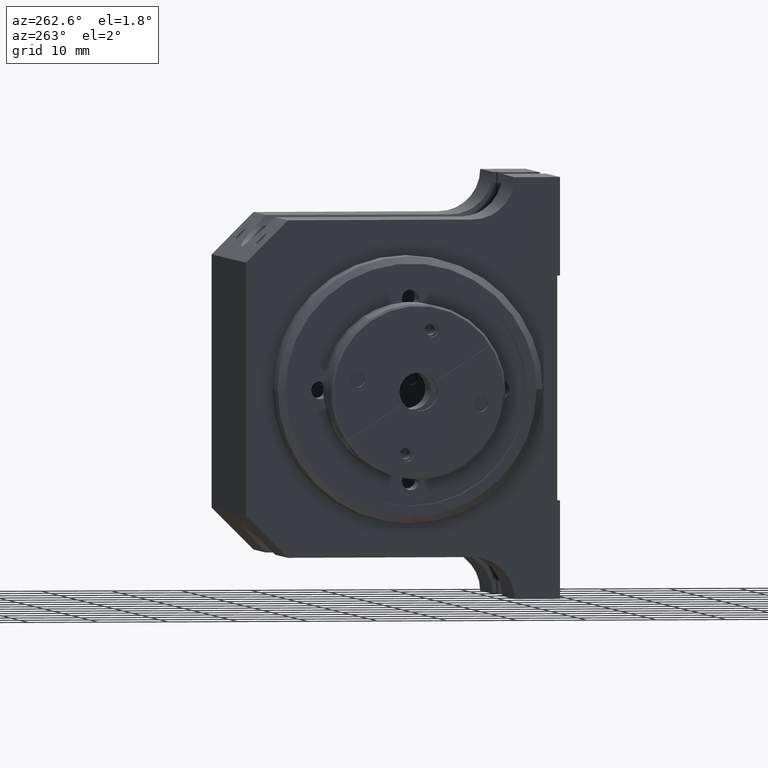
[diagram: clean part render]
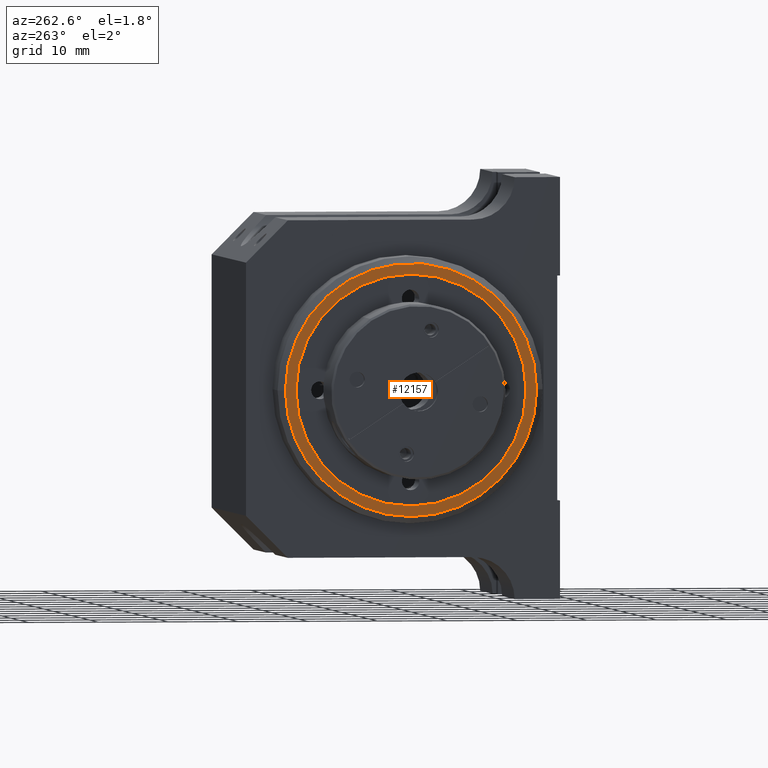
[diagram: same view with one face highlighted and labeled with its STEP entity id]
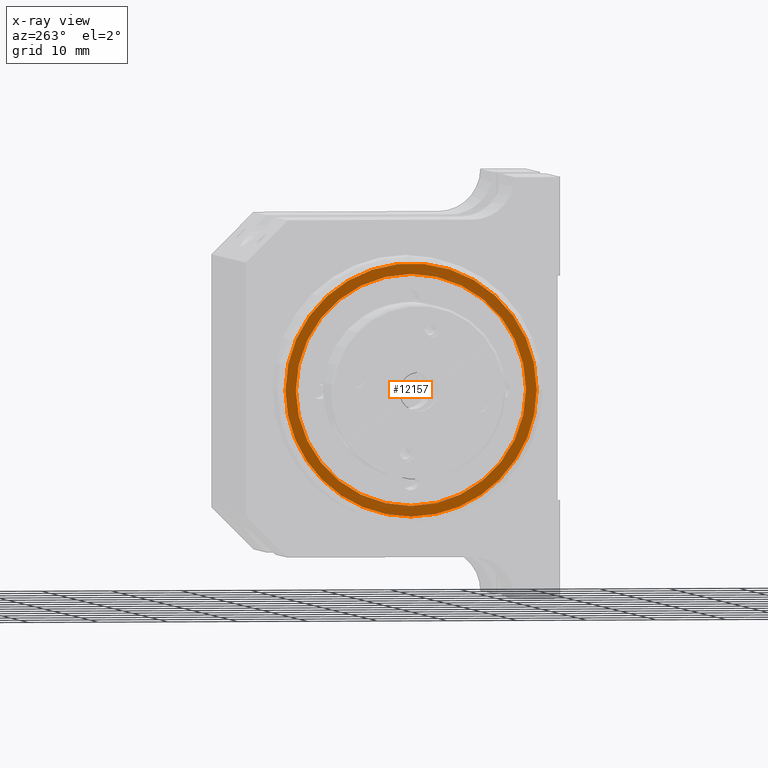
[diagram: x-ray of the same camera — body ghosted, the highlighted face saturated]
A machine part, auxiliary view. The second image highlights one B-rep face of the part: STEP entity #12157.
The next image is the same camera in x-ray: the body ghosted, the highlighted face saturated — about 0% of this face is hidden behind the body in this view.
In plain terms, the highlighted planar face has unit normal (1, 0, 0).
Its self-contained STEP definition (entity closure, byte-faithful):
#15 = VERTEX_POINT ( 'NONE', #4970 ) ;
#177 = VERTEX_POINT ( 'NONE', #10862 ) ;
#291 = EDGE_CURVE ( 'NONE', #1552, #4243, #8238, .T. ) ;
#305 = CIRCLE ( 'NONE', #10580, 16.49999999999999645 ) ;
#379 = CARTESIAN_POINT ( 'NONE',  ( 2.206792701287000133E-05, 20.01035723764999830, 3.527752375123000217 ) ) ;
#543 = DIRECTION ( 'NONE',  ( 0.000000000000000000, 0.9999999288821173060, -0.0003771415654790013518 ) ) ;
#585 = AXIS2_PLACEMENT_3D ( 'NONE', #379, #11248, #9363 ) ;
#788 = EDGE_CURVE ( 'NONE', #177, #15, #4441, .T. ) ;
#1321 = CARTESIAN_POINT ( 'NONE',  ( 2.206792701287000133E-05, 20.01035723764999830, 3.527752375123000217 ) ) ;
#1472 = CARTESIAN_POINT ( 'NONE',  ( 2.206792701287000133E-05, 20.01035723764999830, 3.527752375123000217 ) ) ;
#1552 = VERTEX_POINT ( 'NONE', #11997 ) ;
#2183 = ORIENTED_EDGE ( 'NONE', *, *, #9606, .T. ) ;
#2753 = VERTEX_POINT ( 'NONE', #5628 ) ;
#3227 = FACE_BOUND ( 'NONE', #8570, .T. ) ;
#4103 = ORIENTED_EDGE ( 'NONE', *, *, #291, .F. ) ;
#4243 = VERTEX_POINT ( 'NONE', #12289 ) ;
#4348 = DIRECTION ( 'NONE',  ( 0.000000000000000000, -0.9999999288821173060, 0.0003771415654782009938 ) ) ;
#4441 = CIRCLE ( 'NONE', #8103, 18.00000616289999300 ) ;
#4557 = DIRECTION ( 'NONE',  ( -1.000000000000000000, 0.000000000000000000, 0.000000000000000000 ) ) ;
#4624 = EDGE_CURVE ( 'NONE', #4243, #1552, #305, .T. ) ;
#4638 = CARTESIAN_POINT ( 'NONE',  ( 2.206792700221000021E-05, 20.01035723764999830, 3.527752375123000217 ) ) ;
#4661 = ORIENTED_EDGE ( 'NONE', *, *, #8731, .T. ) ;
#4858 = CIRCLE ( 'NONE', #10237, 18.00000616289999300 ) ;
#4970 = CARTESIAN_POINT ( 'NONE',  ( 2.206792699622000343E-05, 2.010352354875000191, 3.534540925626000085 ) ) ;
#5090 = AXIS2_PLACEMENT_3D ( 'NONE', #9903, #7662, #11900 ) ;
#5354 = DIRECTION ( 'NONE',  ( -1.000000000000000000, 0.000000000000000000, 0.000000000000000000 ) ) ;
#5356 = CARTESIAN_POINT ( 'NONE',  ( 2.206792700221000021E-05, 20.01035723764999830, 3.527752375123000217 ) ) ;
#5421 = DIRECTION ( 'NONE',  ( -1.000000000000000000, 0.000000000000000000, 0.000000000000000000 ) ) ;
#5628 = CARTESIAN_POINT ( 'NONE',  ( 2.206792700820999875E-05, 38.01036212042999551, 3.520963824619999905 ) ) ;
#6342 = ORIENTED_EDGE ( 'NONE', *, *, #4624, .F. ) ;
#7510 = DIRECTION ( 'NONE',  ( 0.000000000000000000, 0.9999999288821173060, -0.0003771415654782009938 ) ) ;
#7662 = DIRECTION ( 'NONE',  ( 1.000000000000000000, 0.000000000000000000, 0.000000000000000000 ) ) ;
#7812 = CIRCLE ( 'NONE', #585, 18.00000616289999300 ) ;
#8103 = AXIS2_PLACEMENT_3D ( 'NONE', #4638, #4557, #543 ) ;
#8238 = CIRCLE ( 'NONE', #11133, 16.49999999999999645 ) ;
#8570 = EDGE_LOOP ( 'NONE', ( #4103, #6342 ) ) ;
#8652 = PLANE ( 'NONE',  #5090 ) ;
#8731 = EDGE_CURVE ( 'NONE', #15, #2753, #7812, .T. ) ;
#9363 = DIRECTION ( 'NONE',  ( 0.000000000000000000, -0.9999999288821173060, 0.0003771415654794109092 ) ) ;
#9606 = EDGE_CURVE ( 'NONE', #2753, #177, #4858, .T. ) ;
#9903 = CARTESIAN_POINT ( 'NONE',  ( 2.206792701287000133E-05, 20.01035723764999830, 3.527752375123000217 ) ) ;
#10153 = DIRECTION ( 'NONE',  ( -1.000000000000000000, 0.000000000000000000, 0.000000000000000000 ) ) ;
#10237 = AXIS2_PLACEMENT_3D ( 'NONE', #5356, #10153, #10322 ) ;
#10322 = DIRECTION ( 'NONE',  ( 0.000000000000000000, 0.9999999288821173060, -0.0003771415654790013518 ) ) ;
#10580 = AXIS2_PLACEMENT_3D ( 'NONE', #1321, #5354, #7510 ) ;
#10726 = ORIENTED_EDGE ( 'NONE', *, *, #788, .T. ) ;
#10862 = CARTESIAN_POINT ( 'NONE',  ( 2.206792700221000021E-05, 20.00356868714710146, -14.47225250765990445 ) ) ;
#11133 = AXIS2_PLACEMENT_3D ( 'NONE', #1472, #5421, #4348 ) ;
#11248 = DIRECTION ( 'NONE',  ( -1.000000000000000000, 0.000000000000000000, 0.000000000000000000 ) ) ;
#11531 = EDGE_LOOP ( 'NONE', ( #4661, #2183, #10726 ) ) ;
#11750 = FACE_OUTER_BOUND ( 'NONE', #11531, .T. ) ;
#11900 = DIRECTION ( 'NONE',  ( 0.000000000000000000, 1.000000000000000000, 0.000000000000000000 ) ) ;
#11997 = CARTESIAN_POINT ( 'NONE',  ( 2.206792700736999956E-05, 3.510358411098000175, 3.533975210953999913 ) ) ;
#12157 = ADVANCED_FACE ( 'NONE', ( #11750, #3227 ), #8652, .F. ) ;
#12289 = CARTESIAN_POINT ( 'NONE',  ( 2.206792701836999971E-05, 36.51035606421000068, 3.521529539292999722 ) ) ;